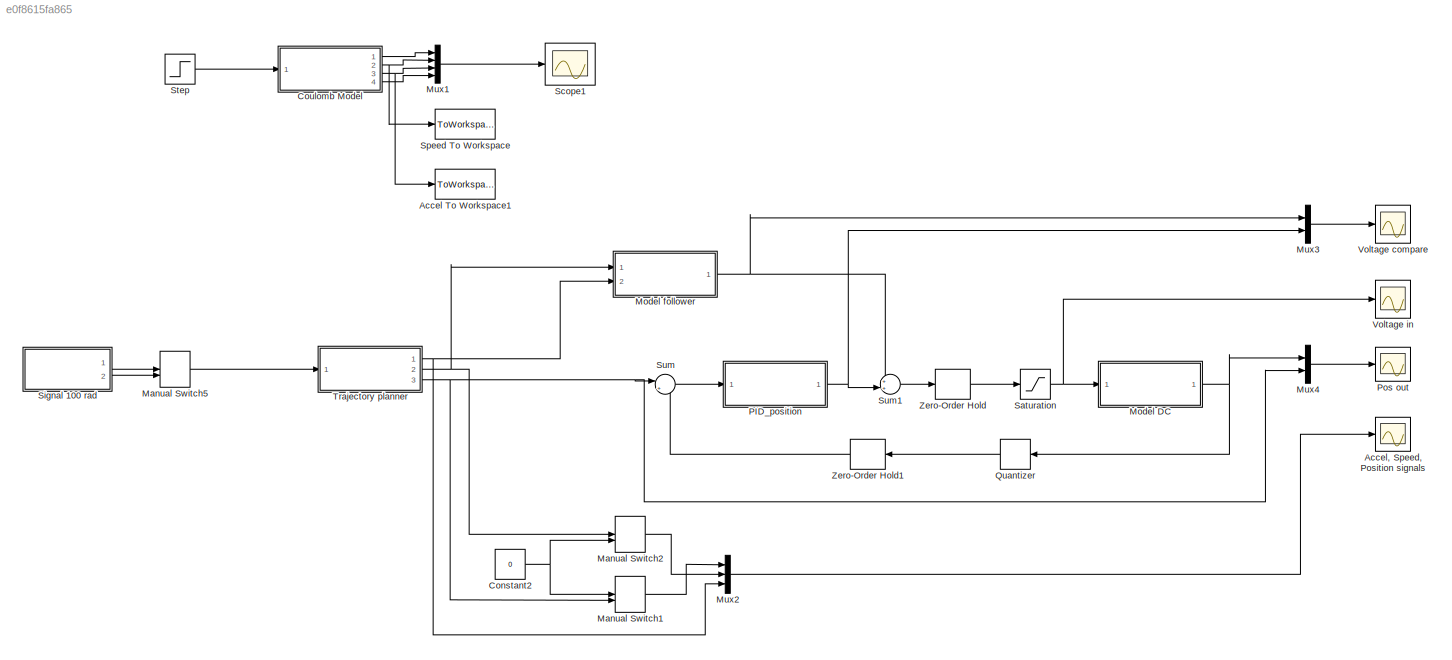
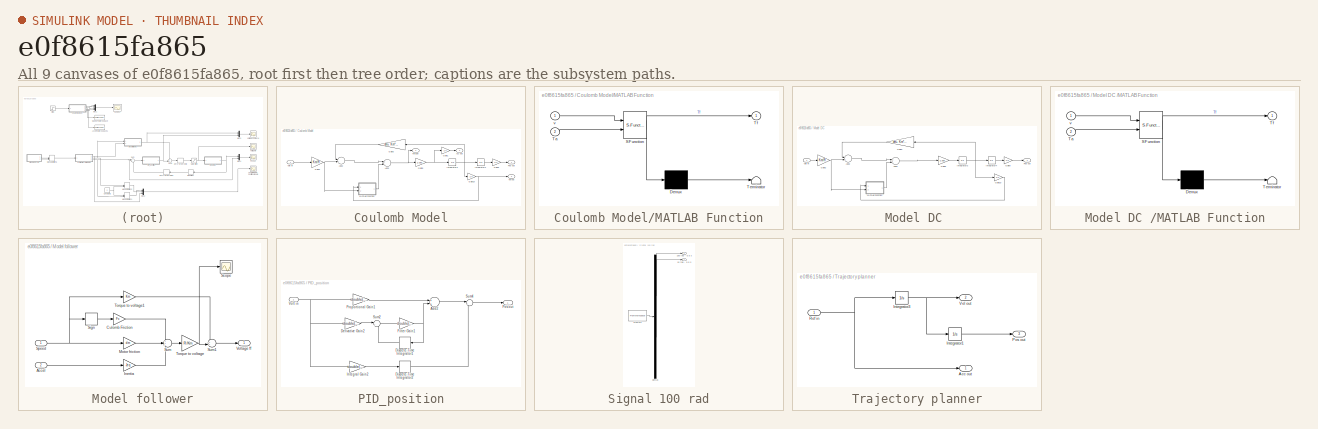
[diagram: thumbnail index - all 9 canvases of the model, root first then tree order]
MODEL slx_e0f8615fa865
KIND model
CONFIG AbsTol = auto
CONFIG EnableMultiTasking = off
CONFIG FixedStep = auto
CONFIG MaxStep = auto
CONFIG MinStep = auto
CONFIG RelTol = 1e-3
CONFIG SampleTimeConstraint = Unconstrained
CONFIG Solver = ode45
CONFIG SolverName = ode45
CONFIG StartTime = 0.0
CONFIG StopTime = 5
BLOCK [ToWorkspace] Accel To Workspace1
  FixptAsFi = on
  MaxDataPoints = inf
  Ports = [1]
  SampleTime = -1
  Save2DSignal = 3-D array (concatenate along third dimension)
  SaveFormat = Timeseries
  VariableName = Accel_24v
BLOCK [Scope] Accel, Speed, Position signals
  NumInputPorts = 1
  Ports = [1]
  ScopeSpecificationString = Simulink.scopes.TimeScopeBlockCfg('CurrentConfiguration', extmgr.ConfigurationSet(extmgr.Configuration('Core','General UI',true),extmgr.Configuration('Core','Source UI',true),extmgr.Configuration('Sources','WiredSimulink',true,'DataLoggingSaveFormat','Array','DataLoggingDecimation','1','DataLoggingDecimateData',true),extmgr.Configuration('Visuals','Time Domain',true,'SerializedDisplays',{struct('M...<+1691ch>
BLOCK [Constant] Constant2
  Value = 0
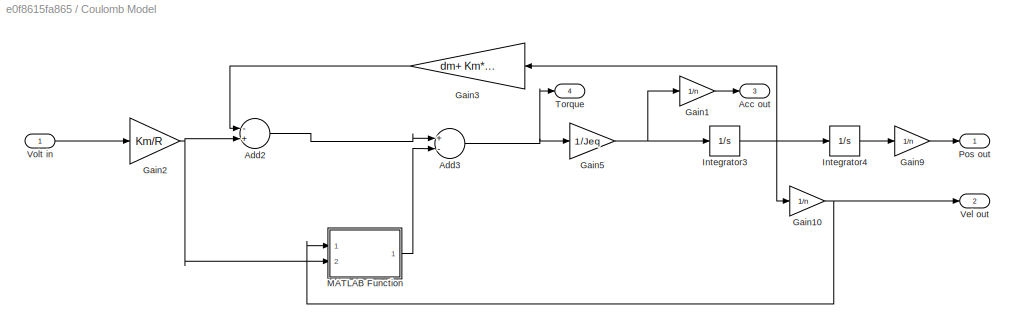
BLOCK [SubSystem] Coulomb Model
  Ports = [1, 4]
  RequestExecContextInheritance = off
  Variant = off
BLOCK [Outport] Coulomb Model/Acc out
  IconDisplay = Port number
  Port = 3
BLOCK [Sum] Coulomb Model/Add2
  InputSameDT = off
  Inputs = -+
  OutDataTypeStr = Inherit: Inherit via internal rule
  Ports = [2, 1]
  SaturateOnIntegerOverflow = off
BLOCK [Sum] Coulomb Model/Add3
  InputSameDT = off
  Inputs = +-
  OutDataTypeStr = Inherit: Inherit via internal rule
  Ports = [2, 1]
  SaturateOnIntegerOverflow = off
BLOCK [Gain] Coulomb Model/Gain1
  Gain = 1/n
  OutDataTypeStr = Inherit: Inherit via internal rule
  ParamDataTypeStr = Inherit: Inherit via internal rule
  SaturateOnIntegerOverflow = off
BLOCK [Gain] Coulomb Model/Gain10
  Gain = 1/n
  OutDataTypeStr = Inherit: Inherit via internal rule
  ParamDataTypeStr = Inherit: Inherit via internal rule
  SaturateOnIntegerOverflow = off
BLOCK [Gain] Coulomb Model/Gain2
  Gain = Km/R
  OutDataTypeStr = Inherit: Inherit via internal rule
  ParamDataTypeStr = Inherit: Inherit via internal rule
  SaturateOnIntegerOverflow = off
BLOCK [Gain] Coulomb Model/Gain3
  Gain = dm+ Km*Kemf/R
  OutDataTypeStr = Inherit: Inherit via internal rule
  ParamDataTypeStr = Inherit: Inherit via internal rule
  SaturateOnIntegerOverflow = off
BLOCK [Gain] Coulomb Model/Gain5
  Gain = 1/Jeq
  OutDataTypeStr = Inherit: Inherit via internal rule
  ParamDataTypeStr = Inherit: Inherit via internal rule
  SaturateOnIntegerOverflow = off
BLOCK [Gain] Coulomb Model/Gain9
  Gain = 1/n
  OutDataTypeStr = Inherit: Inherit via internal rule
  ParamDataTypeStr = Inherit: Inherit via internal rule
  SaturateOnIntegerOverflow = off
BLOCK [Integrator] Coulomb Model/Integrator3
  Ports = [1, 1]
BLOCK [Integrator] Coulomb Model/Integrator4
  Ports = [1, 1]
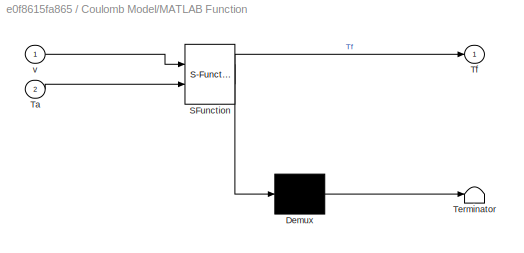
BLOCK [SubSystem] Coulomb Model/MATLAB Function
  ErrorFcn = Stateflow.Translate.translate
  PermitHierarchicalResolution = ExplicitOnly
  Ports = [2, 1]
  RequestExecContextInheritance = off
  SFBlockType = MATLAB Function
  TreatAsAtomicUnit = on
  Variant = off
BLOCK [Demux] Coulomb Model/MATLAB Function/ Demux 
  Outputs = 1
  Ports = [1, 1]
BLOCK [S-Function] Coulomb Model/MATLAB Function/ SFunction 
  EnableBusSupport = off
  FunctionName = sf_sfun
  PortCounts = [2 2]
  Ports = [2, 2]
  SFcnIsStateOwnerBlock = off
  SFunctionDeploymentMode = off
  Tag = Stateflow S-Function WorkshopB_1 2
BLOCK [Terminator] Coulomb Model/MATLAB Function/ Terminator 
BLOCK [Inport] Coulomb Model/MATLAB Function/Ta
  IconDisplay = Port number
  Port = 2
BLOCK [Outport] Coulomb Model/MATLAB Function/Tf
  IconDisplay = Port number
BLOCK [Inport] Coulomb Model/MATLAB Function/v
  IconDisplay = Port number
BLOCK [Outport] Coulomb Model/Pos out
  IconDisplay = Port number
BLOCK [Outport] Coulomb Model/Torque
  IconDisplay = Port number
  Port = 4
BLOCK [Outport] Coulomb Model/Vel out
  IconDisplay = Port number
  Port = 2
BLOCK [Inport] Coulomb Model/Volt in
  IconDisplay = Port number
BLOCK [ManualSwitch] Manual Switch1
  CurrentSetting = 0
BLOCK [ManualSwitch] Manual Switch2
BLOCK [ManualSwitch] Manual Switch5
BLOCK [SubSystem] Model DC 
  Ports = [1, 1]
  RequestExecContextInheritance = off
  Variant = off
BLOCK [Sum] Model DC /Add2
  InputSameDT = off
  Inputs = -+
  OutDataTypeStr = Inherit: Inherit via internal rule
  Ports = [2, 1]
  SaturateOnIntegerOverflow = off
BLOCK [Sum] Model DC /Add3
  InputSameDT = off
  Inputs = +-
  OutDataTypeStr = Inherit: Inherit via internal rule
  Ports = [2, 1]
  SaturateOnIntegerOverflow = off
BLOCK [Gain] Model DC /Gain10
  Gain = 1/n
  OutDataTypeStr = Inherit: Inherit via internal rule
  ParamDataTypeStr = Inherit: Inherit via internal rule
  SaturateOnIntegerOverflow = off
BLOCK [Gain] Model DC /Gain2
  Gain = Km/R
  OutDataTypeStr = Inherit: Inherit via internal rule
  ParamDataTypeStr = Inherit: Inherit via internal rule
  SaturateOnIntegerOverflow = off
BLOCK [Gain] Model DC /Gain3
  Gain = dm+ Km*Kemf/R
  OutDataTypeStr = Inherit: Inherit via internal rule
  ParamDataTypeStr = Inherit: Inherit via internal rule
  SaturateOnIntegerOverflow = off
BLOCK [Gain] Model DC /Gain5
  Gain = 1/Jeq
  OutDataTypeStr = Inherit: Inherit via internal rule
  ParamDataTypeStr = Inherit: Inherit via internal rule
  SaturateOnIntegerOverflow = off
BLOCK [Gain] Model DC /Gain9
  Gain = 1/n
  OutDataTypeStr = Inherit: Inherit via internal rule
  ParamDataTypeStr = Inherit: Inherit via internal rule
  SaturateOnIntegerOverflow = off
BLOCK [Integrator] Model DC /Integrator3
  Ports = [1, 1]
BLOCK [Integrator] Model DC /Integrator4
  Ports = [1, 1]
BLOCK [SubSystem] Model DC /MATLAB Function
  ErrorFcn = Stateflow.Translate.translate
  PermitHierarchicalResolution = ExplicitOnly
  Ports = [2, 1]
  RequestExecContextInheritance = off
  SFBlockType = MATLAB Function
  TreatAsAtomicUnit = on
  Variant = off
BLOCK [Demux] Model DC /MATLAB Function/ Demux 
  Outputs = 1
  Ports = [1, 1]
BLOCK [S-Function] Model DC /MATLAB Function/ SFunction 
  EnableBusSupport = off
  FunctionName = sf_sfun
  PortCounts = [2 2]
  Ports = [2, 2]
  SFcnIsStateOwnerBlock = off
  SFunctionDeploymentMode = off
  Tag = Stateflow S-Function WorkshopB_1 3
BLOCK [Terminator] Model DC /MATLAB Function/ Terminator 
BLOCK [Inport] Model DC /MATLAB Function/Ta
  IconDisplay = Port number
  Port = 2
BLOCK [Outport] Model DC /MATLAB Function/Tf
  IconDisplay = Port number
BLOCK [Inport] Model DC /MATLAB Function/v
  IconDisplay = Port number
BLOCK [Outport] Model DC /Pos out
  IconDisplay = Port number
BLOCK [Inport] Model DC /Volt in 
  IconDisplay = Port number
BLOCK [SubSystem] Model follower
  Ports = [2, 1]
  RequestExecContextInheritance = off
  Variant = off
BLOCK [Inport] Model follower/Accel
  IconDisplay = Port number
  Port = 2
BLOCK [Gain] Model follower/Culomb Friction
  Gain = Fc
  OutDataTypeStr = Inherit: Inherit via internal rule
  ParamDataTypeStr = Inherit: Inherit via internal rule
  SaturateOnIntegerOverflow = off
BLOCK [Gain] Model follower/Inertia 
  Gain = Jeq
  OutDataTypeStr = Inherit: Inherit via internal rule
  ParamDataTypeStr = Inherit: Inherit via internal rule
  SaturateOnIntegerOverflow = off
BLOCK [Gain] Model follower/Motor friction
  Gain = dm
  OutDataTypeStr = Inherit: Inherit via internal rule
  ParamDataTypeStr = Inherit: Inherit via internal rule
  SaturateOnIntegerOverflow = off
BLOCK [Scope] Model follower/Scope
  NumInputPorts = 1
  Ports = [1]
  ScopeSpecificationString = C++SS(StrPVP('Location','[188, 365, 512, 604]'),StrPVP('Open','off'),MxPVP('AxesTitles',24,'struct(''axes1'',''%<SignalLabel>'')'),MxPVP('ScopeGraphics',28,'struct(''FigureColor'',''[0.5 0.5 0.5]'',''AxesColor'',''[0 0 0]'',''AxesTickColor'',''[1 1 1]'',''LineColors'',''[1 1 0;1 0 1;0 1 1;1 0 0;0 1 0;0 0 1]'',''LineStyles'',''-|-|-|-|-|-'',''LineWidths'',''[0.5 0.5 0.5 0.5 0.5 0.5]'',''MarkerStyle...<+251ch>
BLOCK [Signum] Model follower/Sign
BLOCK [Inport] Model follower/Speed
  IconDisplay = Port number
BLOCK [Sum] Model follower/Sum
  IconShape = round
  InputSameDT = off
  Inputs = +++
  OutDataTypeStr = Inherit: Inherit via internal rule
  Ports = [3, 1]
  SaturateOnIntegerOverflow = off
BLOCK [Sum] Model follower/Sum1
  IconShape = round
  InputSameDT = off
  Inputs = ++|
  OutDataTypeStr = Inherit: Inherit via internal rule
  Ports = [2, 1]
  SaturateOnIntegerOverflow = off
BLOCK [Gain] Model follower/Torque to voltage
  Gain = R/Km
  OutDataTypeStr = Inherit: Inherit via internal rule
  ParamDataTypeStr = Inherit: Inherit via internal rule
  SaturateOnIntegerOverflow = off
BLOCK [Gain] Model follower/Torque to voltage1
  Gain = Km
  OutDataTypeStr = Inherit: Inherit via internal rule
  ParamDataTypeStr = Inherit: Inherit via internal rule
  SaturateOnIntegerOverflow = off
BLOCK [Outport] Model follower/Voltage ff
  IconDisplay = Port number
BLOCK [Mux] Mux1
  DisplayOption = bar
  Ports = [4, 1]
BLOCK [Mux] Mux2
  DisplayOption = bar
  Inputs = 3
  Ports = [3, 1]
BLOCK [Mux] Mux3
  DisplayOption = bar
  Inputs = 2
  Ports = [2, 1]
BLOCK [Mux] Mux4
  DisplayOption = bar
  Inputs = 2
  Ports = [2, 1]
BLOCK [SubSystem] PID_position
  Ports = [1, 1]
  RequestExecContextInheritance = off
  Variant = off
BLOCK [Sum] PID_position/Add2
  InputSameDT = off
  OutDataTypeStr = Inherit: Inherit via internal rule
  Ports = [2, 1]
  SaturateOnIntegerOverflow = off
BLOCK [Gain] PID_position/Derivative Gain2
  Gain = double(Dpos)
  OutDataTypeStr = Inherit: Inherit via internal rule
  ParamDataTypeStr = Inherit: Inherit via internal rule
  SaturateOnIntegerOverflow = off
BLOCK [DiscreteIntegrator] PID_position/Discrete-Time Integrator1
  ICPrevOutput = DiscIntNeverNeededParam
  ICPrevScaledInput = DiscIntNeverNeededParam
  InitialConditionSetting = State (most efficient)
  Ports = [1, 1]
  SampleTime = Ts
BLOCK [DiscreteIntegrator] PID_position/Discrete-Time Integrator2
  ICPrevOutput = DiscIntNeverNeededParam
  ICPrevScaledInput = DiscIntNeverNeededParam
  InitialConditionSetting = State (most efficient)
  Ports = [1, 1]
  SampleTime = Ts
BLOCK [Gain] PID_position/Filter Gain1
  Gain = double(Npos)
  OutDataTypeStr = Inherit: Inherit via internal rule
  ParamDataTypeStr = Inherit: Inherit via internal rule
  SaturateOnIntegerOverflow = off
BLOCK [Gain] PID_position/Integral Gain2
  Gain = double(Ipos)
  OutDataTypeStr = Inherit: Inherit via internal rule
  ParamDataTypeStr = Inherit: Inherit via internal rule
  SaturateOnIntegerOverflow = off
BLOCK [Outport] PID_position/Pos out
  IconDisplay = Port number
BLOCK [Gain] PID_position/Proportional Gain1
  Gain = double(Ppos)
  OutDataTypeStr = Inherit: Inherit via internal rule
  ParamDataTypeStr = Inherit: Inherit via internal rule
  SaturateOnIntegerOverflow = off
BLOCK [Sum] PID_position/Sum2
  IconShape = round
  InputSameDT = off
  Inputs = |+-
  OutDataTypeStr = Inherit: Inherit via internal rule
  Ports = [2, 1]
  SaturateOnIntegerOverflow = off
BLOCK [Sum] PID_position/Sum4
  IconShape = round
  InputSameDT = off
  Inputs = |++
  OutDataTypeStr = Inherit: Inherit via internal rule
  Ports = [2, 1]
  SaturateOnIntegerOverflow = off
BLOCK [Inport] PID_position/Volt in
  IconDisplay = Port number
BLOCK [Scope] Pos out
  NumInputPorts = 1
  Ports = [1]
  ScopeSpecificationString = Simulink.scopes.TimeScopeBlockCfg('CurrentConfiguration', extmgr.ConfigurationSet(extmgr.Configuration('Core','General UI',true),extmgr.Configuration('Core','Source UI',true),extmgr.Configuration('Sources','WiredSimulink',true,'DataLoggingVariableName','ScopeData3','DataLoggingSaveFormat','Array','DataLoggingDecimation','1','DataLoggingDecimateData',true),extmgr.Configuration('Visuals','Time Domai...<+1751ch>
BLOCK [Quantizer] Quantizer
  QuantizationInterval = Pulses
  SampleTime = Ts
BLOCK [Saturate] Saturation
  InputPortMap = u0
  LowerLimit = -24
  Ports = [1, 1]
  UpperLimit = 24
BLOCK [Scope] Scope1
  NumInputPorts = 1
  Ports = [1]
  ScopeSpecificationString = C++SS(StrPVP('Location','[10, 60, 1930, 1051]'),StrPVP('Open','off'),MxPVP('AxesTitles',24,'struct(''axes1'',''%<SignalLabel>'')'),MxPVP('ScopeGraphics',28,'struct(''FigureColor'',''[0.5 0.5 0.5]'',''AxesColor'',''[0 0 0]'',''AxesTickColor'',''[1 1 1]'',''LineColors'',''[1 1 0;1 0 1;0 1 1;1 0 0;0 1 0;0 0 1]'',''LineStyles'',''-|-|-|-|-|-'',''LineWidths'',''[0.5 0.5 0.5 0.5 0.5 0.5]'',''MarkerStyle...<+251ch>
BLOCK [SubSystem] Signal 100 rad
  ClipboardFcn = sigbuilder_block('clipboard');
  CloseFcn = sigbuilder_block('close');
  ContinueFcn = sigbuilder_block('continue');
  CopyFcn = sigbuilder_block('copy');
  DeleteFcn = sigbuilder_block('delete');
  LoadFcn = sigbuilder_block('load');
  MaskHideContents = on
  ModelCloseFcn = sigbuilder_block('modelClose');
  NameChangeFcn = sigbuilder_block('namechange');
  OpenFcn = sigbuilder_block('open',[437.25 153 550.5 359.25 ]);
  PauseFcn = sigbuilder_block('pause');
  Ports = [0, 2]
  PreSaveFcn = sigbuilder_block('preSave');
  RequestExecContextInheritance = off
  StartFcn = sigbuilder_block('start');
  StopFcn = sigbuilder_block('stop');
  Tag = STV Subsys
  Variant = off
BLOCK [Outport] Signal 100 rad/10 rad - 0.5 s
  IconDisplay = Port number
  Port = 2
  Tag = STV Outport
BLOCK [Outport] Signal 100 rad/100 rad - 0.5 s
  IconDisplay = Port number
  Tag = STV Outport
BLOCK [Demux] Signal 100 rad/Demux
  Outputs = 2
  Ports = [1, 2]
  Tag = STV Demux
BLOCK [FromWorkspace] Signal 100 rad/FromWs
  SampleTime = 0
  Tag = STV FromWs
  VariableName = tuvar
  ZeroCross = on
BLOCK [ToWorkspace] Speed To Workspace
  FixptAsFi = on
  MaxDataPoints = inf
  Ports = [1]
  SampleTime = -1
  Save2DSignal = 3-D array (concatenate along third dimension)
  SaveFormat = Timeseries
  VariableName = Speed_24v
BLOCK [Step] Step
  After = 24
  SampleTime = 0
  Time = 0
BLOCK [Sum] Sum
  IconShape = round
  InputSameDT = off
  Inputs = |+-
  OutDataTypeStr = Inherit: Inherit via internal rule
  Ports = [2, 1]
  SaturateOnIntegerOverflow = off
BLOCK [Sum] Sum1
  IconShape = round
  InputSameDT = off
  Inputs = ++|
  OutDataTypeStr = Inherit: Inherit via internal rule
  Ports = [2, 1]
  SaturateOnIntegerOverflow = off
BLOCK [SubSystem] Trajectory planner
  Ports = [1, 3]
  RequestExecContextInheritance = off
  Variant = off
BLOCK [Outport] Trajectory planner/Acc out 
  IconDisplay = Port number
BLOCK [Integrator] Trajectory planner/Integrator1
  Ports = [1, 1]
BLOCK [Integrator] Trajectory planner/Integrator3
  Ports = [1, 1]
BLOCK [Outport] Trajectory planner/Pos out 
  IconDisplay = Port number
  Port = 3
BLOCK [Inport] Trajectory planner/Ref in
  IconDisplay = Port number
BLOCK [Outport] Trajectory planner/Vel out
  IconDisplay = Port number
  Port = 2
BLOCK [Scope] Voltage compare
  NumInputPorts = 1
  Ports = [1]
  ScopeSpecificationString = Simulink.scopes.TimeScopeBlockCfg('CurrentConfiguration', extmgr.ConfigurationSet(extmgr.Configuration('Core','General UI',true),extmgr.Configuration('Core','Source UI',true),extmgr.Configuration('Sources','WiredSimulink',true,'DataLoggingVariableName','ScopeData2','DataLoggingLimitDataPoints',true,'DataLoggingSaveFormat','Array','DataLoggingDecimation','1','DataLoggingDecimateData',true),extmgr.C...<+1699ch>
BLOCK [Scope] Voltage in
  NumInputPorts = 1
  Ports = [1]
  ScopeSpecificationString = Simulink.scopes.TimeScopeBlockCfg('CurrentConfiguration', extmgr.ConfigurationSet(extmgr.Configuration('Core','General UI',true),extmgr.Configuration('Core','Source UI',true),extmgr.Configuration('Sources','WiredSimulink',true,'DataLoggingVariableName','ScopeData4','DataLoggingSaveFormat','Array','DataLoggingDecimation','1','DataLoggingDecimateData',true),extmgr.Configuration('Visuals','Time Domai...<+1652ch>
BLOCK [ZeroOrderHold] Zero-Order Hold
  SampleTime = Ts
BLOCK [ZeroOrderHold] Zero-Order Hold1
  SampleTime = Ts
NET Constant2:1 -> Manual Switch1:1, Manual Switch2:2
LINE Coulomb Model/Add2:1 -> Coulomb Model/Add3:1
NET Coulomb Model/Add3:1 -> Coulomb Model/Gain5:1, Coulomb Model/Torque:1
NET Coulomb Model/Gain10:1 -> Coulomb Model/MATLAB Function:1, Coulomb Model/Vel out:1
LINE Coulomb Model/Gain1:1 -> Coulomb Model/Acc out:1
NET Coulomb Model/Gain2:1 -> Coulomb Model/Add2:2, Coulomb Model/MATLAB Function:2
LINE Coulomb Model/Gain3:1 -> Coulomb Model/Add2:1
NET Coulomb Model/Gain5:1 -> Coulomb Model/Gain1:1, Coulomb Model/Integrator3:1
LINE Coulomb Model/Gain9:1 -> Coulomb Model/Pos out:1
NET Coulomb Model/Integrator3:1 -> Coulomb Model/Gain10:1, Coulomb Model/Gain3:1, Coulomb Model/Integrator4:1
LINE Coulomb Model/Integrator4:1 -> Coulomb Model/Gain9:1
LINE Coulomb Model/MATLAB Function:1 -> Coulomb Model/Add3:2
LINE Coulomb Model/Volt in:1 -> Coulomb Model/Gain2:1
LINE Coulomb Model:1 -> Mux1:1
NET Coulomb Model:2 -> Mux1:2, Speed To Workspace:1
NET Coulomb Model:3 -> Accel To Workspace1:1, Mux1:3
LINE Coulomb Model:4 -> Mux1:4
LINE Manual Switch1:1 -> Mux2:1
LINE Manual Switch2:1 -> Mux2:2
LINE Manual Switch5:1 -> Trajectory planner:1
LINE Model DC /Add2:1 -> Model DC /Add3:1
LINE Model DC /Add3:1 -> Model DC /Gain5:1
LINE Model DC /Gain10:1 -> Model DC /MATLAB Function:1
NET Model DC /Gain2:1 -> Model DC /Add2:2, Model DC /MATLAB Function:2
LINE Model DC /Gain3:1 -> Model DC /Add2:1
LINE Model DC /Gain5:1 -> Model DC /Integrator3:1
LINE Model DC /Gain9:1 -> Model DC /Pos out:1
NET Model DC /Integrator3:1 -> Model DC /Gain10:1, Model DC /Gain3:1, Model DC /Integrator4:1
LINE Model DC /Integrator4:1 -> Model DC /Gain9:1
LINE Model DC /MATLAB Function:1 -> Model DC /Add3:2
LINE Model DC /Volt in :1 -> Model DC /Gain2:1
NET Model DC :1 -> Mux4:1, Quantizer:1
LINE Model follower/Accel:1 -> Model follower/Inertia :1
LINE Model follower/Culomb Friction:1 -> Model follower/Sum:1
LINE Model follower/Inertia :1 -> Model follower/Sum:3
LINE Model follower/Motor friction:1 -> Model follower/Sum:2
LINE Model follower/Sign:1 -> Model follower/Culomb Friction:1
NET Model follower/Speed:1 -> Model follower/Motor friction:1, Model follower/Sign:1, Model follower/Torque to voltage1:1
LINE Model follower/Sum1:1 -> Model follower/Voltage ff:1
LINE Model follower/Sum:1 -> Model follower/Torque to voltage:1
LINE Model follower/Torque to voltage1:1 -> Model follower/Sum1:1
NET Model follower/Torque to voltage:1 -> Model follower/Scope:1, Model follower/Sum1:2
NET Model follower:1 -> Mux3:1, Sum1:1
LINE Mux1:1 -> Scope1:1
LINE Mux2:1 -> Accel, Speed, Position signals:1
LINE Mux3:1 -> Voltage compare:1
LINE Mux4:1 -> Pos out:1
LINE PID_position/Add2:1 -> PID_position/Sum4:1
LINE PID_position/Derivative Gain2:1 -> PID_position/Sum2:1
LINE PID_position/Discrete-Time Integrator1:1 -> PID_position/Sum2:2
LINE PID_position/Discrete-Time Integrator2:1 -> PID_position/Sum4:2
NET PID_position/Filter Gain1:1 -> PID_position/Add2:2, PID_position/Discrete-Time Integrator1:1
LINE PID_position/Integral Gain2:1 -> PID_position/Discrete-Time Integrator2:1
LINE PID_position/Proportional Gain1:1 -> PID_position/Add2:1
LINE PID_position/Sum2:1 -> PID_position/Filter Gain1:1
LINE PID_position/Sum4:1 -> PID_position/Pos out:1
NET PID_position/Volt in:1 -> PID_position/Derivative Gain2:1, PID_position/Integral Gain2:1, PID_position/Proportional Gain1:1
NET PID_position:1 -> Mux3:2, Sum1:2
LINE Quantizer:1 -> Zero-Order Hold1:1
NET Saturation:1 -> Model DC :1, Voltage in:1
LINE Signal 100 rad:1 -> Manual Switch5:1
LINE Signal 100 rad:2 -> Manual Switch5:2
LINE Step:1 -> Coulomb Model:1
LINE Sum1:1 -> Zero-Order Hold:1
LINE Sum:1 -> PID_position:1
LINE Trajectory planner/Integrator1:1 -> Trajectory planner/Pos out :1
NET Trajectory planner/Integrator3:1 -> Trajectory planner/Integrator1:1, Trajectory planner/Vel out:1
NET Trajectory planner/Ref in:1 -> Trajectory planner/Acc out :1, Trajectory planner/Integrator3:1
NET Trajectory planner:1 -> Model follower:2, Mux2:3
NET Trajectory planner:2 -> Manual Switch2:1, Model follower:1
NET Trajectory planner:3 -> Manual Switch1:2, Mux4:2, Sum:1
LINE Zero-Order Hold1:1 -> Sum:2
LINE Zero-Order Hold:1 -> Saturation:1
note: NET lines group one-source signal fan-out (src -> all destinations, sorted); 1:1 wires keep LINE
CHART Coulomb Model/MATLAB Function states=1 transitions=1
  STATE_LABEL 'eML_blk_kernel()'
  STATE_LABEL 'SCRIPT:\nfunction Tf = fcn(v,Ta)\nTc = 1e-3;\ndv = 1e-1;\nif abs(v) < dv\n    if abs(Ta) > Tc\n        Tf = Tc*sign(Ta);\n    else\n        Tf = Ta;\n    end\nelse\n    Tf = Tc*sign(v);\nend'
CHART Model DC
/MATLAB Function states=1 transitions=1
  STATE_LABEL 'eML_blk_kernel()'
  STATE_LABEL 'SCRIPT:\nfunction Tf = fcn(v,Ta)\nTc = 1e-3;\ndv = 1e-1;\nif abs(v) < dv\n    if abs(Ta) > Tc\n        Tf = Tc*sign(Ta);\n    else\n        Tf = Ta;\n    end\nelse\n    Tf = Tc*sign(v);\nend'
